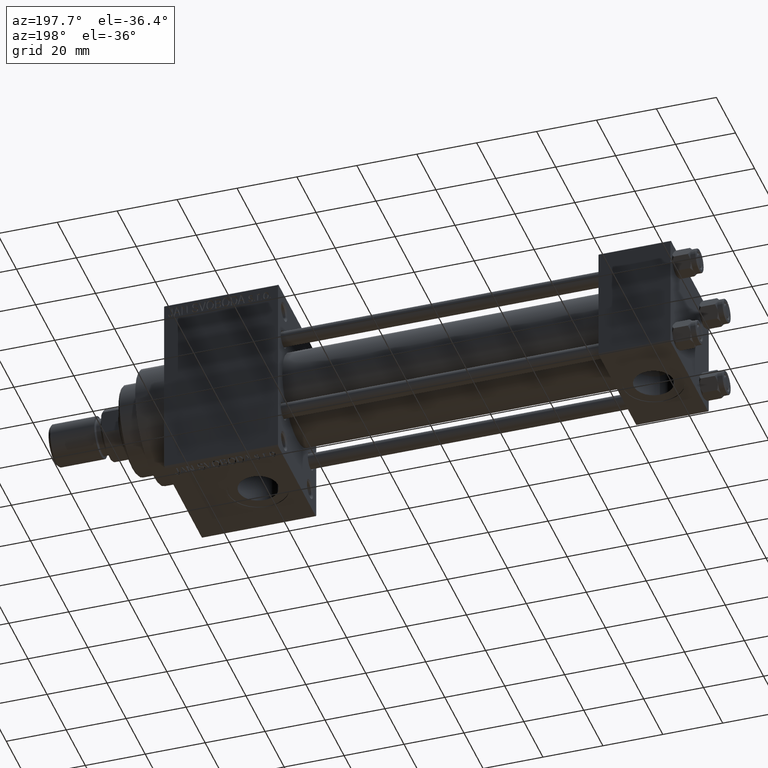
[diagram: clean part render]
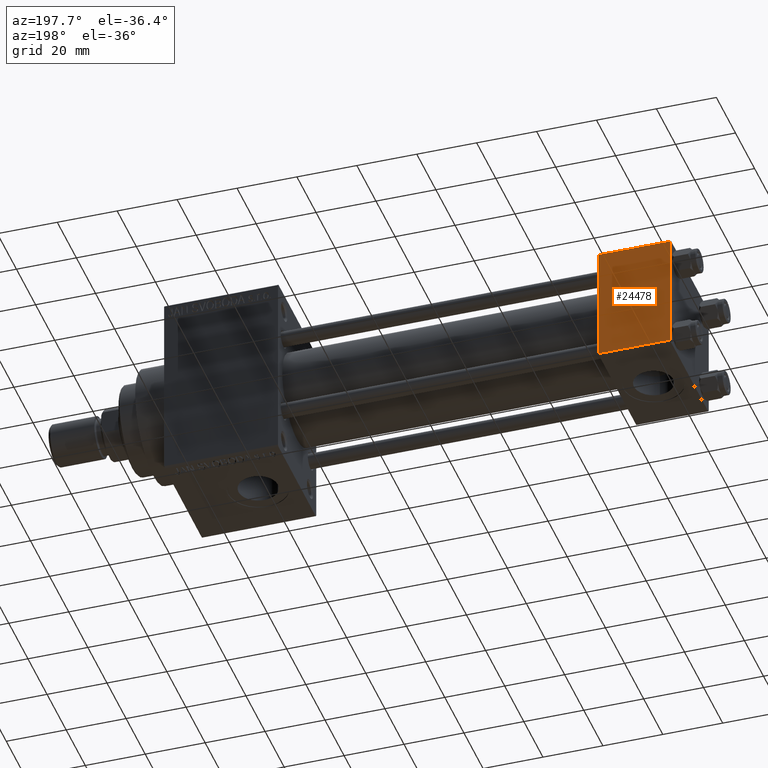
[diagram: same view with one face highlighted and labeled with its STEP entity id]
A machine part, auxiliary view. The second image highlights one B-rep face of the part: STEP entity #24478.
In plain terms, the highlighted planar face has unit normal (0, 1, 0).
Its self-contained STEP definition (entity closure, byte-faithful):
#511 = VERTEX_POINT ( 'NONE', #6818 ) ;
#1467 = VECTOR ( 'NONE', #21626, 1000.000000000000000 ) ;
#2544 = ORIENTED_EDGE ( 'NONE', *, *, #21285, .T. ) ;
#3335 = CARTESIAN_POINT ( 'NONE',  ( 24.00000000000000000, 20.00000000000000000, -19.50000000000002132 ) ) ;
#6818 = CARTESIAN_POINT ( 'NONE',  ( 0.000000000000000000, 20.00000000000000000, 19.49999999999999289 ) ) ;
#7290 = CARTESIAN_POINT ( 'NONE',  ( 24.00000000000000000, 20.00000000000000000, 20.00000000000000000 ) ) ;
#8502 = CARTESIAN_POINT ( 'NONE',  ( 24.00000000000000000, 20.00000000000000000, 20.00000000000000000 ) ) ;
#9464 = CARTESIAN_POINT ( 'NONE',  ( 24.00000000000000000, 20.00000000000000000, 19.49999999999999289 ) ) ;
#9755 = VECTOR ( 'NONE', #13296, 1000.000000000000000 ) ;
#10510 = EDGE_CURVE ( 'NONE', #511, #35777, #39569, .T. ) ;
#12340 = DIRECTION ( 'NONE',  ( -0.000000000000000000, 1.000000000000000000, 0.000000000000000000 ) ) ;
#13296 = DIRECTION ( 'NONE',  ( 1.000000000000000000, 0.000000000000000000, 0.000000000000000000 ) ) ;
#14138 = ORIENTED_EDGE ( 'NONE', *, *, #23220, .T. ) ;
#18135 = ORIENTED_EDGE ( 'NONE', *, *, #18291, .T. ) ;
#18291 = EDGE_CURVE ( 'NONE', #511, #19512, #27509, .T. ) ;
#19512 = VERTEX_POINT ( 'NONE', #19989 ) ;
#19989 = CARTESIAN_POINT ( 'NONE',  ( 24.00000000000000000, 20.00000000000000000, 19.49999999999999289 ) ) ;
#21285 = EDGE_CURVE ( 'NONE', #19512, #23231, #40237, .T. ) ;
#21626 = DIRECTION ( 'NONE',  ( -1.000000000000000000, 0.000000000000000000, 0.000000000000000000 ) ) ;
#22239 = EDGE_LOOP ( 'NONE', ( #2544, #14138, #42375, #18135 ) ) ;
#23220 = EDGE_CURVE ( 'NONE', #23231, #35777, #47576, .T. ) ;
#23231 = VERTEX_POINT ( 'NONE', #3335 ) ;
#23640 = PLANE ( 'NONE',  #44528 ) ;
#24478 = ADVANCED_FACE ( 'NONE', ( #45754 ), #23640, .T. ) ;
#25630 = DIRECTION ( 'NONE',  ( 0.000000000000000000, 0.000000000000000000, -1.000000000000000000 ) ) ;
#27509 = LINE ( 'NONE', #9464, #9755 ) ;
#34458 = DIRECTION ( 'NONE',  ( 0.000000000000000000, -0.000000000000000000, 1.000000000000000000 ) ) ;
#35777 = VERTEX_POINT ( 'NONE', #40903 ) ;
#35944 = VECTOR ( 'NONE', #43370, 1000.000000000000000 ) ;
#37368 = VECTOR ( 'NONE', #25630, 1000.000000000000000 ) ;
#39569 = LINE ( 'NONE', #43902, #37368 ) ;
#39892 = CARTESIAN_POINT ( 'NONE',  ( 24.00000000000000000, 20.00000000000000000, -19.50000000000002132 ) ) ;
#40237 = LINE ( 'NONE', #7290, #35944 ) ;
#40903 = CARTESIAN_POINT ( 'NONE',  ( 0.000000000000000000, 20.00000000000000000, -19.50000000000002132 ) ) ;
#42375 = ORIENTED_EDGE ( 'NONE', *, *, #10510, .F. ) ;
#43370 = DIRECTION ( 'NONE',  ( 0.000000000000000000, 0.000000000000000000, -1.000000000000000000 ) ) ;
#43902 = CARTESIAN_POINT ( 'NONE',  ( 0.000000000000000000, 20.00000000000000000, 20.00000000000000000 ) ) ;
#44528 = AXIS2_PLACEMENT_3D ( 'NONE', #8502, #12340, #34458 ) ;
#45754 = FACE_OUTER_BOUND ( 'NONE', #22239, .T. ) ;
#47576 = LINE ( 'NONE', #39892, #1467 ) ;